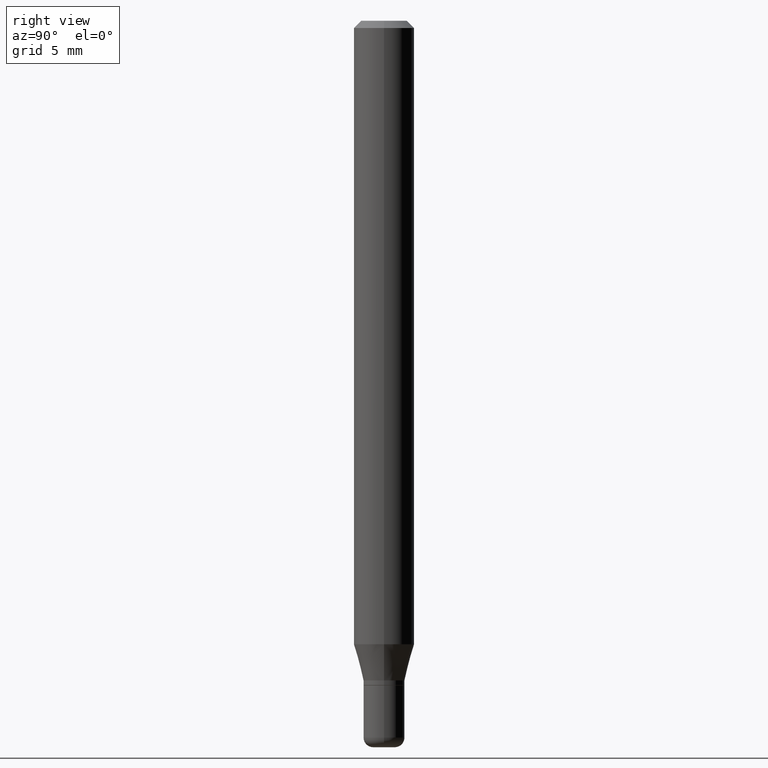
[diagram: clean part render]
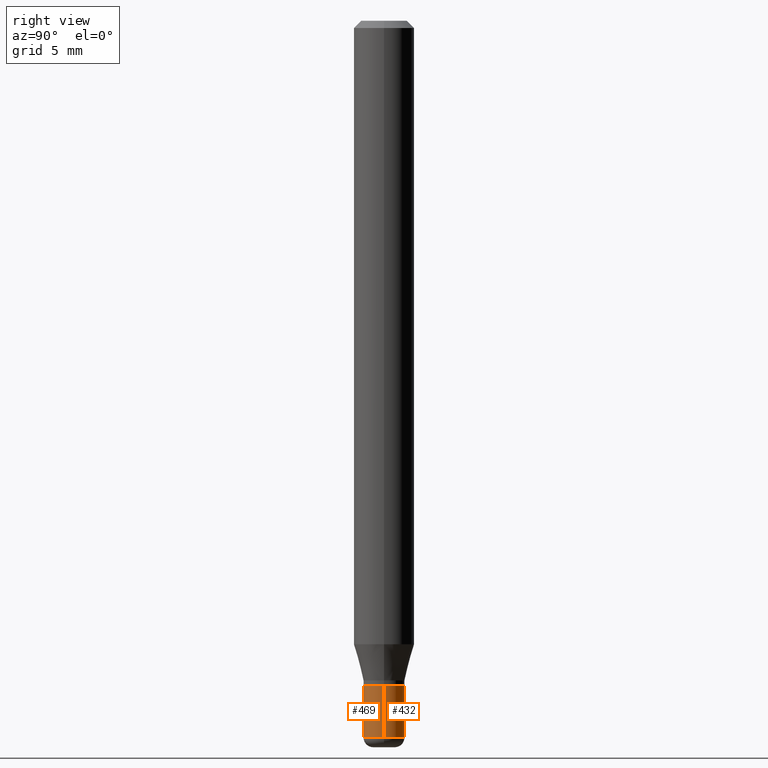
[diagram: same view with one multi-face feature highlighted, each face labeled with its STEP entity id]
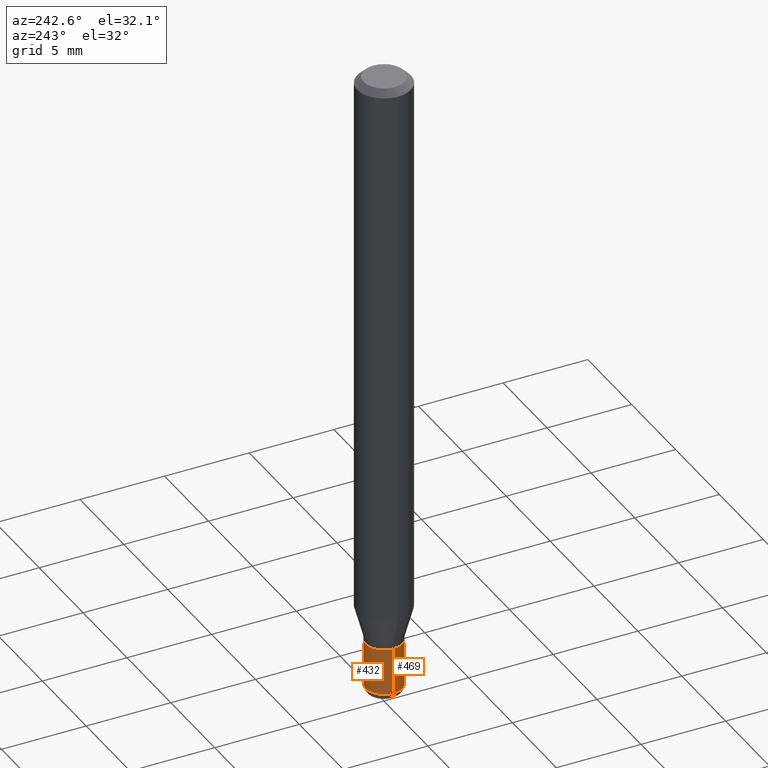
[diagram: same view with one multi-face feature highlighted, each face labeled with its STEP entity id]
A machine part, right view. The highlighted faces form ONE feature: a constant-radius fillet chain: 2 tangent blend faces with common blend radius 1.0795 mm. The faces share edges in the B-rep.
A second angle (auxiliary view) of the same feature is appended — it is thin or edge-on in the first view.
Their STEP definitions:
[1] entity #469 (Cylinder):
#3 = ORIENTED_EDGE ( 'NONE', *, *, #28, .T. ) ;
#18 = VECTOR ( 'NONE', #58, 39.37007874015748143 ) ;
#28 = EDGE_CURVE ( 'NONE', #466, #372, #200, .T. ) ;
#30 = CARTESIAN_POINT ( 'NONE',  ( 0.04250000000000003081, -5.464168295289522318E-15, -1.479999999999999982 ) ) ;
#58 = DIRECTION ( 'NONE',  ( -2.445468806185136877E-29, 3.491481338843145188E-15, 1.000000000000000000 ) ) ;
#63 = CARTESIAN_POINT ( 'NONE',  ( 0.04249999999999999611, -5.087088310694462559E-15, -1.372000000000000108 ) ) ;
#69 = DIRECTION ( 'NONE',  ( -2.445468806185136877E-29, 3.491481338843145188E-15, 1.000000000000000000 ) ) ;
#77 = EDGE_CURVE ( 'NONE', #466, #439, #423, .T. ) ;
#106 = EDGE_LOOP ( 'NONE', ( #250, #3, #317, #374 ) ) ;
#129 = VERTEX_POINT ( 'NONE', #63 ) ;
#131 = CARTESIAN_POINT ( 'NONE',  ( -0.04250000000000003081, -4.676871726492283729E-15, -1.479999999999999982 ) ) ;
#132 = CARTESIAN_POINT ( 'NONE',  ( 3.619293833154002365E-29, -5.167392381487854879E-15, -1.479999999999999982 ) ) ;
#157 = DIRECTION ( 'NONE',  ( 1.000000000000000000, -6.982962677686276177E-15, 0.000000000000000000 ) ) ;
#160 = CARTESIAN_POINT ( 'NONE',  ( 0.04250000000000001693, -2.967759138016664535E-16, 2.072375129713273553E-30 ) ) ;
#200 = CIRCLE ( 'NONE', #430, 0.04250000000000003081 ) ;
#205 = DIRECTION ( 'NONE',  ( -2.445468806185136597E-29, 3.491481338843145583E-15, 1.000000000000000000 ) ) ;
#214 = FACE_OUTER_BOUND ( 'NONE', #106, .T. ) ;
#237 = LINE ( 'NONE', #160, #447 ) ;
#250 = ORIENTED_EDGE ( 'NONE', *, *, #77, .F. ) ;
#253 = DIRECTION ( 'NONE',  ( 1.000000000000000000, -6.982962677686266711E-15, 4.876176775795935793E-29 ) ) ;
#266 = DIRECTION ( 'NONE',  ( -2.445468806185136597E-29, 3.491481338843145583E-15, 1.000000000000000000 ) ) ;
#286 = AXIS2_PLACEMENT_3D ( 'NONE', #355, #396, #157 ) ;
#287 = AXIS2_PLACEMENT_3D ( 'NONE', #451, #205, #253 ) ;
#303 = EDGE_CURVE ( 'NONE', #372, #129, #237, .T. ) ;
#317 = ORIENTED_EDGE ( 'NONE', *, *, #303, .T. ) ;
#319 = EDGE_CURVE ( 'NONE', #439, #129, #505, .T. ) ;
#355 = CARTESIAN_POINT ( 'NONE',  ( 3.355183202086007133E-29, -4.790312396892795908E-15, -1.372000000000000108 ) ) ;
#372 = VERTEX_POINT ( 'NONE', #30 ) ;
#373 = CARTESIAN_POINT ( 'NONE',  ( -0.04249999999999999611, -4.676871726492283729E-15, -1.372000000000000108 ) ) ;
#374 = ORIENTED_EDGE ( 'NONE', *, *, #319, .F. ) ;
#396 = DIRECTION ( 'NONE',  ( -2.445468806185136597E-29, 3.491481338843145583E-15, 1.000000000000000000 ) ) ;
#418 = CARTESIAN_POINT ( 'NONE',  ( -0.04250000000000001693, 3.019806626980426993E-16, -2.090547413358335910E-30 ) ) ;
#423 = LINE ( 'NONE', #418, #18 ) ;
#430 = AXIS2_PLACEMENT_3D ( 'NONE', #132, #266, #434 ) ;
#434 = DIRECTION ( 'NONE',  ( 1.000000000000000000, -6.982962677686269866E-15, 0.000000000000000000 ) ) ;
#439 = VERTEX_POINT ( 'NONE', #373 ) ;
#447 = VECTOR ( 'NONE', #69, 39.37007874015748143 ) ;
#451 = CARTESIAN_POINT ( 'NONE',  ( 0.000000000000000000, 0.000000000000000000, 0.000000000000000000 ) ) ;
#466 = VERTEX_POINT ( 'NONE', #131 ) ;
#469 = ADVANCED_FACE ( 'NONE', ( #214 ), #485, .T. ) ;
#485 = CYLINDRICAL_SURFACE ( 'NONE', #287, 0.04250000000000001693 ) ;
#505 = CIRCLE ( 'NONE', #286, 0.04249999999999999611 ) ;
[2] entity #432 (Cylinder):
#1 = DIRECTION ( 'NONE',  ( -2.445468806185136597E-29, 3.491481338843145583E-15, 1.000000000000000000 ) ) ;
#18 = VECTOR ( 'NONE', #58, 39.37007874015748143 ) ;
#30 = CARTESIAN_POINT ( 'NONE',  ( 0.04250000000000003081, -5.464168295289522318E-15, -1.479999999999999982 ) ) ;
#41 = AXIS2_PLACEMENT_3D ( 'NONE', #212, #336, #490 ) ;
#58 = DIRECTION ( 'NONE',  ( -2.445468806185136877E-29, 3.491481338843145188E-15, 1.000000000000000000 ) ) ;
#63 = CARTESIAN_POINT ( 'NONE',  ( 0.04249999999999999611, -5.087088310694462559E-15, -1.372000000000000108 ) ) ;
#69 = DIRECTION ( 'NONE',  ( -2.445468806185136877E-29, 3.491481338843145188E-15, 1.000000000000000000 ) ) ;
#74 = DIRECTION ( 'NONE',  ( -2.445468806185136597E-29, 3.491481338843145583E-15, 1.000000000000000000 ) ) ;
#77 = EDGE_CURVE ( 'NONE', #466, #439, #423, .T. ) ;
#85 = CARTESIAN_POINT ( 'NONE',  ( 0.000000000000000000, 0.000000000000000000, 0.000000000000000000 ) ) ;
#123 = DIRECTION ( 'NONE',  ( 1.000000000000000000, -6.982962677686266711E-15, 4.876176775795935793E-29 ) ) ;
#129 = VERTEX_POINT ( 'NONE', #63 ) ;
#131 = CARTESIAN_POINT ( 'NONE',  ( -0.04250000000000003081, -4.676871726492283729E-15, -1.479999999999999982 ) ) ;
#139 = AXIS2_PLACEMENT_3D ( 'NONE', #506, #74, #314 ) ;
#160 = CARTESIAN_POINT ( 'NONE',  ( 0.04250000000000001693, -2.967759138016664535E-16, 2.072375129713273553E-30 ) ) ;
#212 = CARTESIAN_POINT ( 'NONE',  ( 3.619293833154002365E-29, -5.167392381487854879E-15, -1.479999999999999982 ) ) ;
#237 = LINE ( 'NONE', #160, #447 ) ;
#303 = EDGE_CURVE ( 'NONE', #372, #129, #237, .T. ) ;
#314 = DIRECTION ( 'NONE',  ( 1.000000000000000000, -6.982962677686276177E-15, 0.000000000000000000 ) ) ;
#331 = ORIENTED_EDGE ( 'NONE', *, *, #462, .T. ) ;
#336 = DIRECTION ( 'NONE',  ( -2.445468806185136597E-29, 3.491481338843145583E-15, 1.000000000000000000 ) ) ;
#340 = CYLINDRICAL_SURFACE ( 'NONE', #347, 0.04250000000000001693 ) ;
#347 = AXIS2_PLACEMENT_3D ( 'NONE', #85, #1, #123 ) ;
#362 = CIRCLE ( 'NONE', #41, 0.04250000000000003081 ) ;
#369 = FACE_OUTER_BOUND ( 'NONE', #473, .T. ) ;
#370 = CIRCLE ( 'NONE', #139, 0.04249999999999999611 ) ;
#372 = VERTEX_POINT ( 'NONE', #30 ) ;
#373 = CARTESIAN_POINT ( 'NONE',  ( -0.04249999999999999611, -4.676871726492283729E-15, -1.372000000000000108 ) ) ;
#383 = EDGE_CURVE ( 'NONE', #129, #439, #370, .T. ) ;
#418 = CARTESIAN_POINT ( 'NONE',  ( -0.04250000000000001693, 3.019806626980426993E-16, -2.090547413358335910E-30 ) ) ;
#423 = LINE ( 'NONE', #418, #18 ) ;
#432 = ADVANCED_FACE ( 'NONE', ( #369 ), #340, .T. ) ;
#439 = VERTEX_POINT ( 'NONE', #373 ) ;
#445 = ORIENTED_EDGE ( 'NONE', *, *, #77, .T. ) ;
#447 = VECTOR ( 'NONE', #69, 39.37007874015748143 ) ;
#448 = ORIENTED_EDGE ( 'NONE', *, *, #383, .F. ) ;
#462 = EDGE_CURVE ( 'NONE', #372, #466, #362, .T. ) ;
#466 = VERTEX_POINT ( 'NONE', #131 ) ;
#473 = EDGE_LOOP ( 'NONE', ( #331, #445, #448, #508 ) ) ;
#490 = DIRECTION ( 'NONE',  ( 1.000000000000000000, -6.982962677686269866E-15, 0.000000000000000000 ) ) ;
#506 = CARTESIAN_POINT ( 'NONE',  ( 3.355183202086007133E-29, -4.790312396892795908E-15, -1.372000000000000108 ) ) ;
#508 = ORIENTED_EDGE ( 'NONE', *, *, #303, .F. ) ;